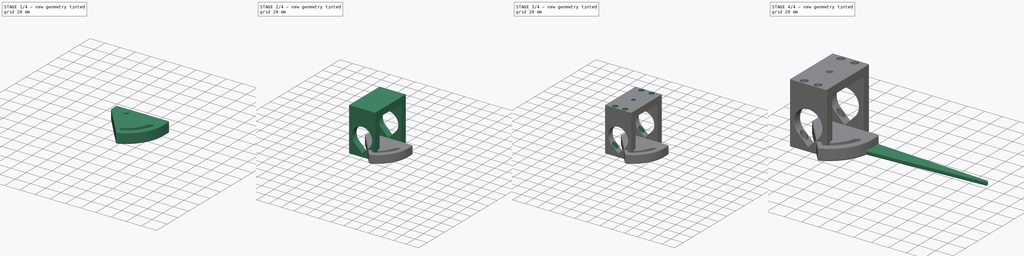
[diagram: build sequence overview — one tinted view per stage of 4, left to right]
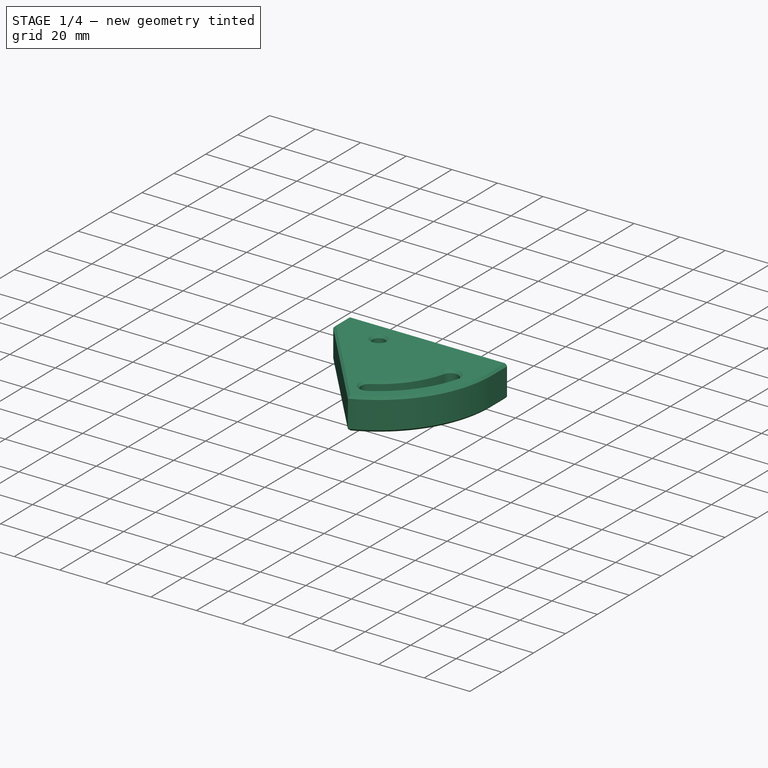
[diagram: stage 1 of 4 — iso view after this stage's code; geometry added in this stage tinted green]
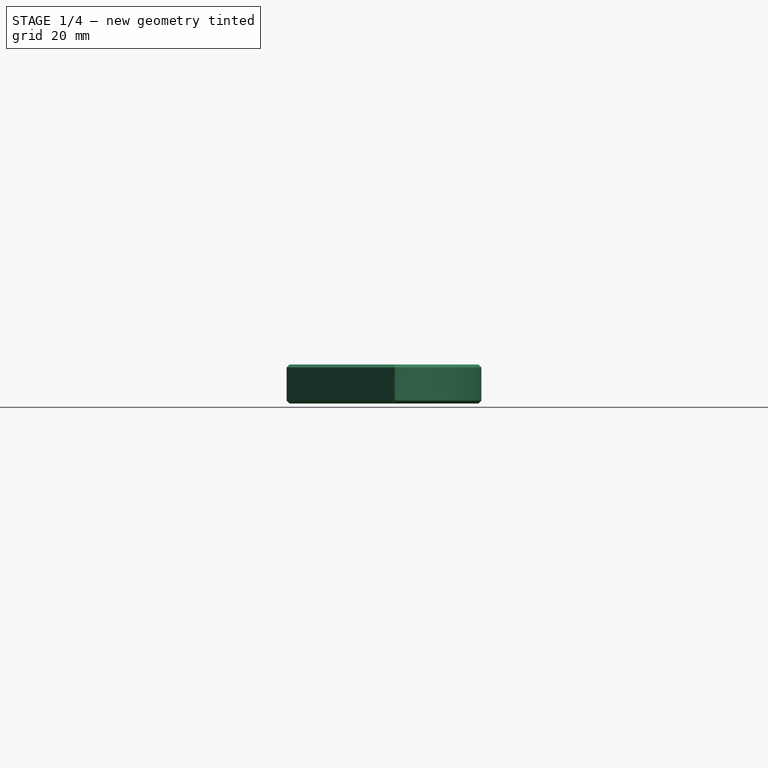
[diagram: stage 1 of 4 — front view after this stage's code; geometry added in this stage tinted green]
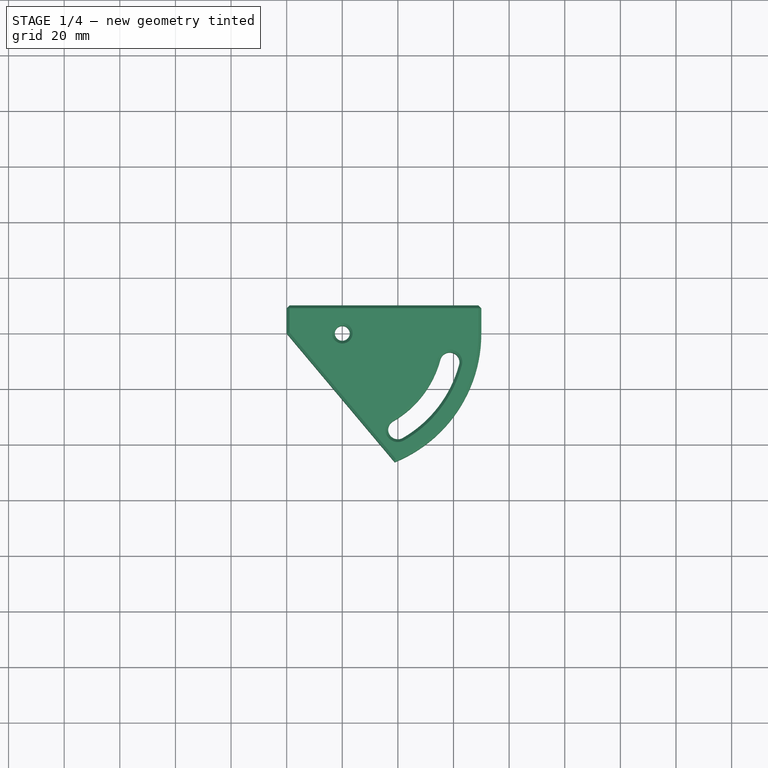
[diagram: stage 1 of 4 — top view after this stage's code; geometry added in this stage tinted green]
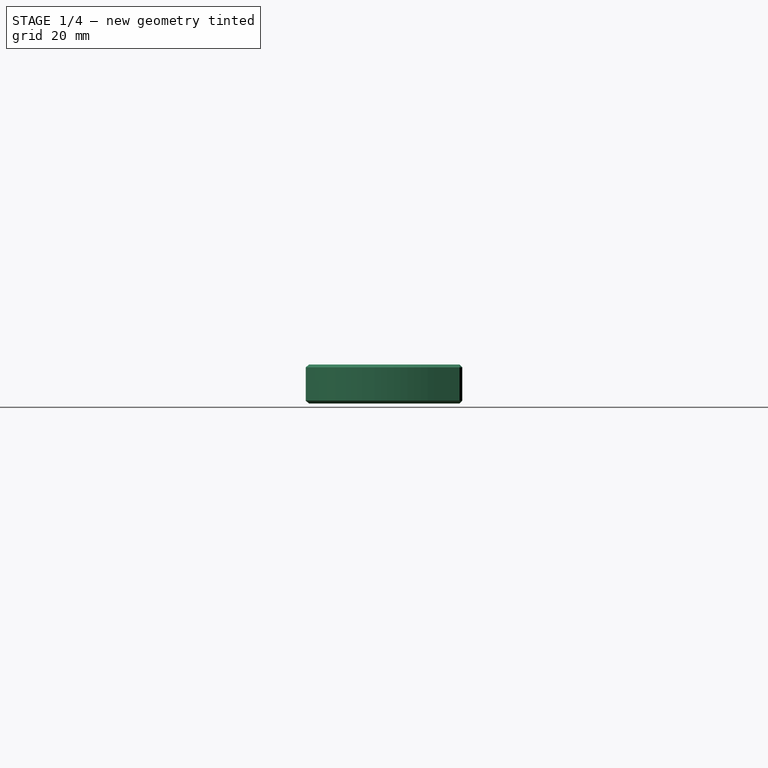
[diagram: stage 1 of 4 — right view after this stage's code; geometry added in this stage tinted green]
FCSTD DOCUMENT  (FreeCAD 0.20R29410 (Git))
Label: second way jig
License: All rights reserved
LicenseURL: http://en.wikipedia.org/wiki/All_rights_reserved
objects: Sketcher::SketchObject×9, PartDesign::Pocket×6, PartDesign::Pad×3, PartDesign::Chamfer×3, PartDesign::Body×3, Spreadsheet::Sheet×1, App::Part×1
note: 36 computed .brp shape members not serialized (recipe doc carries the construction recipe); baked Part::Feature solids carry a one-line shape summary decoded from their .brp

FEATURE [PartDesign::Body] Body001  label="body"
  Group = -> [Sketch001,Pad001,Sketch002,Pocket,Sketch003,Pocket001,Sketch004,Sketch005,Pocket002,Pocket003,Sketch007,Pocket004,Chamfer001]
  Origin = -> Origin002
  Tip = -> Chamfer001
FEATURE [PartDesign::Pad] Pad002
  Direction = (0,0,1)
  Length = 10
  Length2 = 10
  Profile = -> Sketch006
  ReferenceAxis = -> Sketch006 [N_Axis]
  Type = 0
  expr: Length = <<q>>.body_wall
FEATURE [Sketcher::SketchObject] Sketch008
  ExternalGeometry = -> [Pad002]
  FullyConstrained = true
  MapMode = 5
  Placement = pos=(0,10,0) rot=(0,0.707107,0.707107;3.14159rad)
  Support = -> [Pad002]
  expr: Constraints[1] = <<q>>.m5_insert_diameter
  expr: Constraints[3] = <<q>>.body_wall / 2
  expr: Constraints[4] = <<q>>.body_wall / 2
  sketch-geometry (3):
    g0: Circle CenterX=-45 CenterY=5 CenterZ=0 NormalX=0 NormalY=0 NormalZ=1 AngleXU=0 Radius=3.1
    g1: Circle CenterX=15 CenterY=5 CenterZ=0 NormalX=0 NormalY=0 NormalZ=1 AngleXU=0 Radius=3.1
    g2: GeomPoint X=-50 Y=5 Z=0
  constraints (7):
    c: Equal(g1,g0)
    c: Diameter(g1) = 6.2
    c: Horizontal(g0,g1)
    c: DistanceX(g-3,g0) = 5
    c: DistanceX(g1,g-4) = 5
    c: Symmetric(g-3,g-3,g2)
    c: Horizontal(g2,g0)
FEATURE [PartDesign::Pocket] Pocket005
  BaseFeature = -> Pad002
  Direction = (0,-1,2e-16)
  Length = 8
  Length2 = 5
  Profile = -> Sketch008
  ReferenceAxis = -> Sketch008 [N_Axis]
  Type = 0
  expr: Length = <<q>>.m5_insert_depth
FEATURE [PartDesign::Chamfer] Chamfer002
  Angle = 45
  Base = -> Pocket005 [Face3,Face4,Face1]
  BaseFeature = -> Pocket005
  ChamferType = 0
  FlipDirection = false
  Size = 1
  Size2 = 1
  SupportTransform = false
  UseAllEdges = false
FEATURE [PartDesign::Body] Body002  label="pivot"
  Group = -> [Sketch006,Pad002,Sketch008,Pocket005,Chamfer002]
  Origin = -> Origin003
  Tip = -> Chamfer002
FEATURE [App::Part] Part
  Group = -> [Body,Body001,Body002]
  Origin = -> Origin001
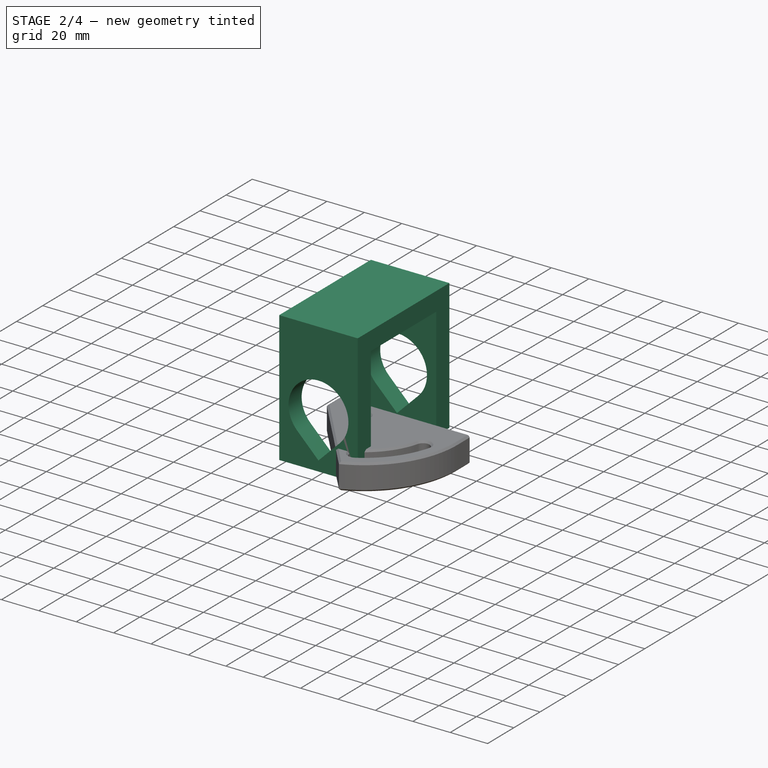
[diagram: stage 2 of 4 — iso view after this stage's code; geometry added in this stage tinted green]
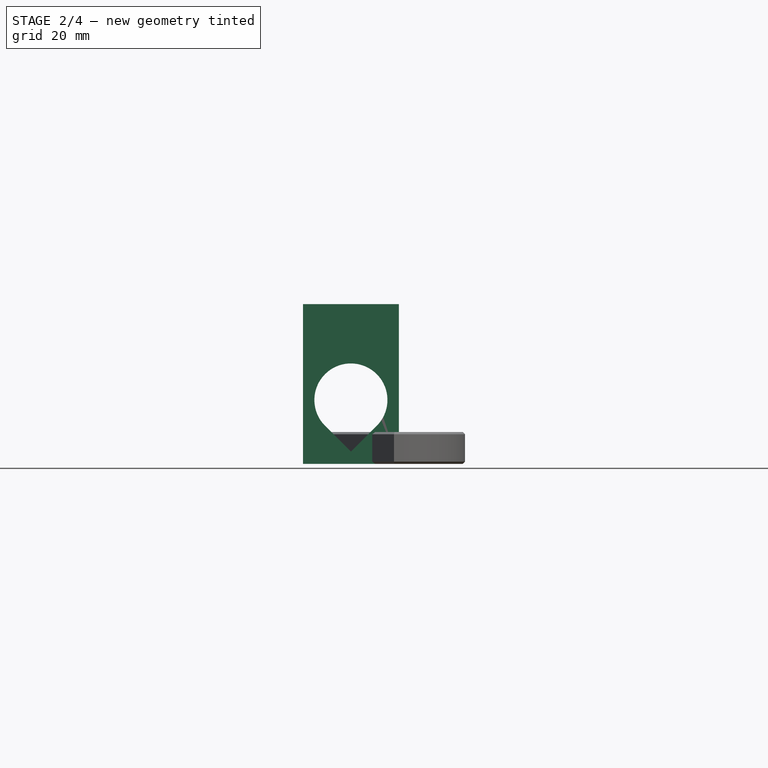
[diagram: stage 2 of 4 — front view after this stage's code; geometry added in this stage tinted green]
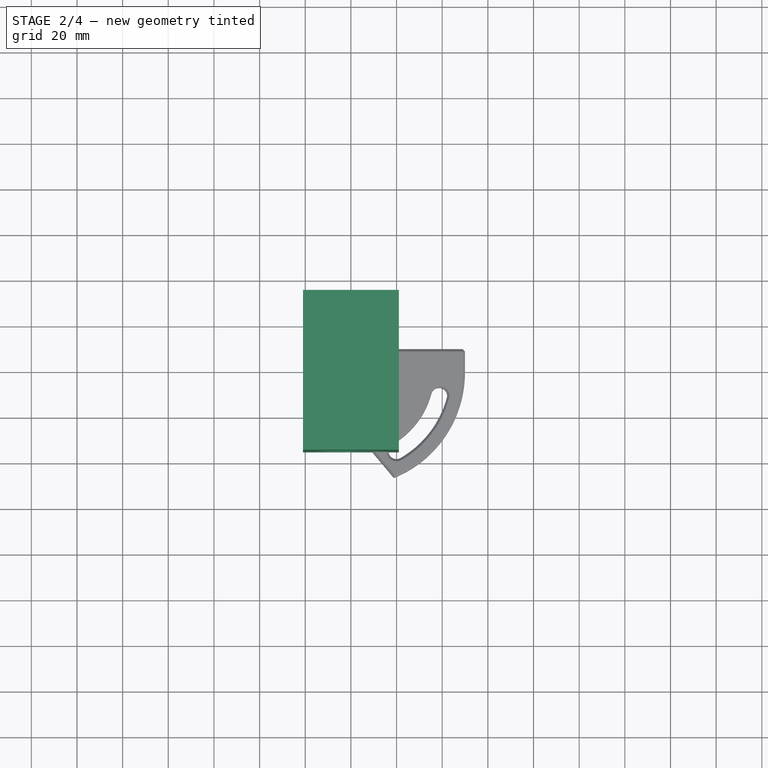
[diagram: stage 2 of 4 — top view after this stage's code; geometry added in this stage tinted green]
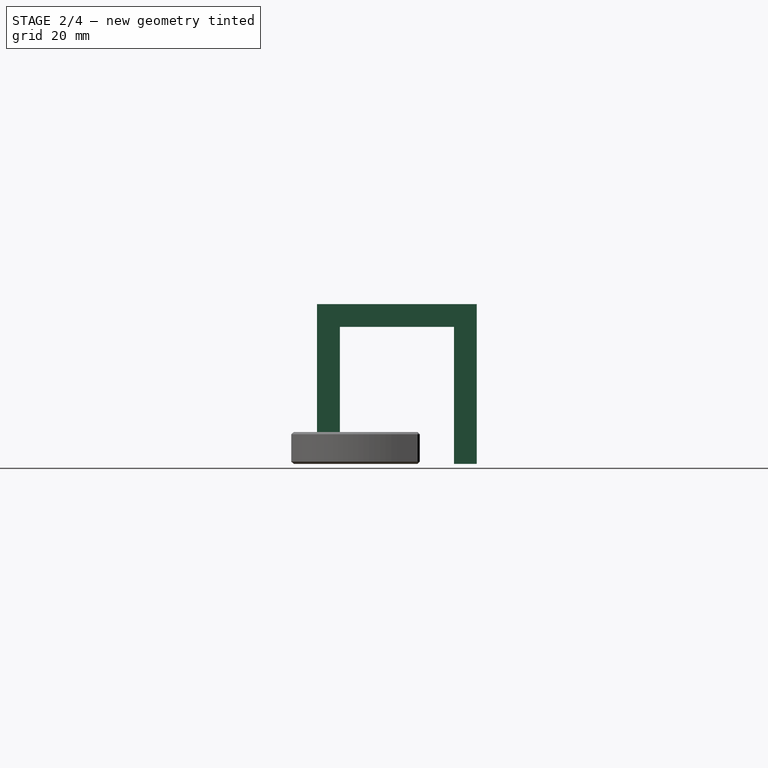
[diagram: stage 2 of 4 — right view after this stage's code; geometry added in this stage tinted green]
FEATURE [PartDesign::Body] Body  label="leg"
  Group = -> [Sketch,Pad,Chamfer]
  Origin = -> Origin
  Tip = -> Chamfer
FEATURE [Sketcher::SketchObject] Sketch001
  FullyConstrained = true
  MapMode = 5
  Support = -> [XY_Plane002]
  expr: Constraints[8] = <<q>>.body_width
  expr: Constraints[9] = <<q>>.body_height
  sketch-geometry (4):
    g0: LineSegment StartX=-21 StartY=35 StartZ=0 EndX=21 EndY=35 EndZ=0
    g1: LineSegment StartX=21 StartY=35 StartZ=0 EndX=21 EndY=-35 EndZ=0
    g2: LineSegment StartX=21 StartY=-35 StartZ=0 EndX=-21 EndY=-35 EndZ=0
    g3: LineSegment StartX=-21 StartY=-35 StartZ=0 EndX=-21 EndY=35 EndZ=0
  constraints (11):
    c: Coincident(g0,g1)
    c: Coincident(g1,g2)
    c: Coincident(g2,g3)
    c: Coincident(g3,g0)
    c: Horizontal(g0)
    c: Horizontal(g2)
    c: Vertical(g1)
    c: Vertical(g3)
    c: DistanceX(g0,g0) = 42
    c: DistanceY(g1,g1) = 70
    c: Symmetric(g2,g0,g-1)
FEATURE [PartDesign::Pad] Pad001
  Direction = (0,0,1)
  Length = 70
  Length2 = 10
  Profile = -> Sketch001
  ReferenceAxis = -> Sketch001 [N_Axis]
  Type = 0
  expr: Length = <<q>>.body_length
FEATURE [Sketcher::SketchObject] Sketch002
  FullyConstrained = true
  MapMode = 5
  Placement = pos=(0,-35,0) rot=(1,0,0;1.5708rad)
  Support = -> [Pad001]
  expr: Constraints[1] = <<q>>.tool_hole_diameter / 2
  expr: Constraints[8] = <<q>>.tool_hole_vertical
  sketch-geometry (3):
    g0: ArcOfCircle CenterX=0 CenterY=28 CenterZ=0 NormalX=0 NormalY=0 NormalZ=1 AngleXU=0 Radius=16 StartAngle=5.49779 EndAngle=10.2102
    g1: LineSegment StartX=-11.3137 StartY=16.6863 StartZ=0 EndX=0 EndY=5.37258 EndZ=0
    g2: LineSegment StartX=0 StartY=5.37258 StartZ=0 EndX=11.3137 EndY=16.6863 EndZ=0
  constraints (9):
    c: PointOnObject(g0,g-2)
    c: Radius(g0) = 16
    c: Tangent(g0,g1) = -1.5708
    c: Coincident(g1,g2)
    c: Coincident(g2,g0)
    c: PointOnObject(g1,g-2)
    c: Angle(g2,g1) = 1.5708
    c: Horizontal(g0,g0)
    c: DistanceY(g-1,g0) = 28
FEATURE [PartDesign::Pocket] Pocket
  BaseFeature = -> Pad001
  Direction = (0,1,-2e-16)
  Length = 0
  Length2 = 5
  Profile = -> Sketch002
  ReferenceAxis = -> Sketch002 [N_Axis]
  Type = 3
  UpToFace = -> Pad001 [Face1]
FEATURE [Sketcher::SketchObject] Sketch003
  ExternalGeometry = -> [Pocket]
  FullyConstrained = true
  MapMode = 5
  Placement = pos=(0,0,0) rot=(1,0,0;3.14159rad)
  Support = -> [Pocket]
  expr: Constraints[9] = <<q>>.body_wall
  sketch-geometry (4):
    g0: LineSegment StartX=-21 StartY=25 StartZ=0 EndX=21 EndY=25 EndZ=0
    g1: LineSegment StartX=21 StartY=25 StartZ=0 EndX=21 EndY=-25 EndZ=0
    g2: LineSegment StartX=21 StartY=-25 StartZ=0 EndX=-21 EndY=-25 EndZ=0
    g3: LineSegment StartX=-21 StartY=-25 StartZ=0 EndX=-21 EndY=25 EndZ=0
  constraints (11):
    c: Coincident(g0,g1)
    c: Coincident(g1,g2)
    c: Coincident(g2,g3)
    c: Coincident(g3,g0)
    c: Horizontal(g0)
    c: Horizontal(g2)
    c: Vertical(g1)
    c: Vertical(g3)
    c: Symmetric(g1,g0,g-1)
    c: DistanceY(g0,g-3) = 10
    c: Vertical(g-3,g0)
FEATURE [PartDesign::Pocket] Pocket001
  BaseFeature = -> Pocket
  Direction = (0,0,1)
  Length = 60
  Length2 = 5
  Profile = -> Sketch003
  ReferenceAxis = -> Sketch003 [N_Axis]
  Type = 0
  expr: Length = <<q>>.body_height - <<q>>.body_wall
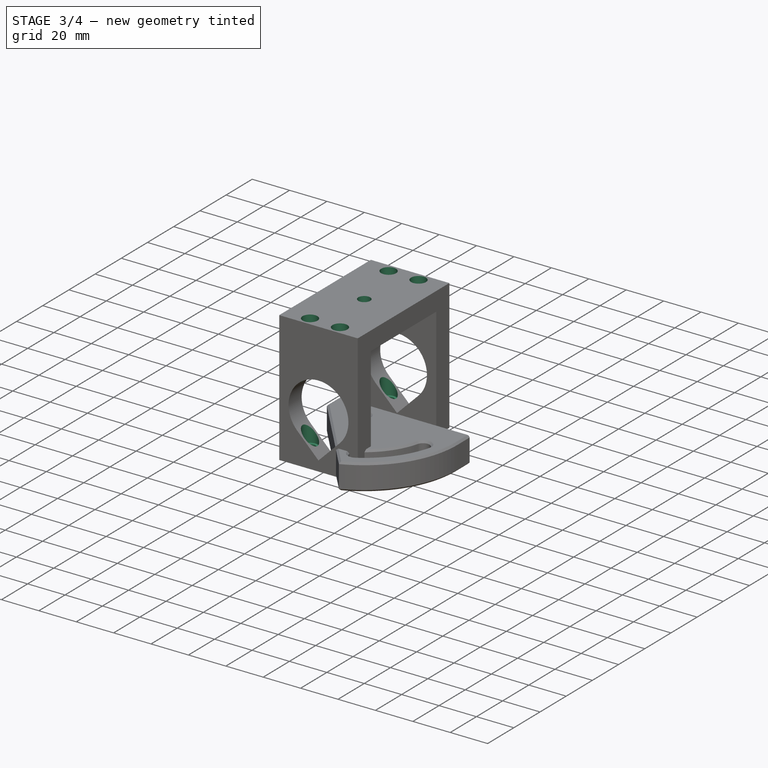
[diagram: stage 3 of 4 — iso view after this stage's code; geometry added in this stage tinted green]
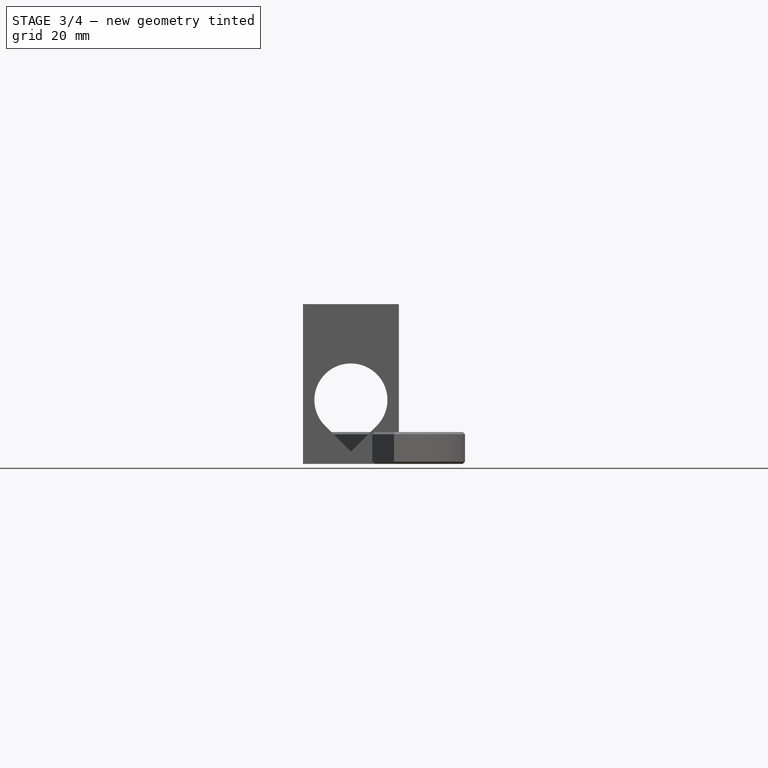
[diagram: stage 3 of 4 — front view after this stage's code; geometry added in this stage tinted green]
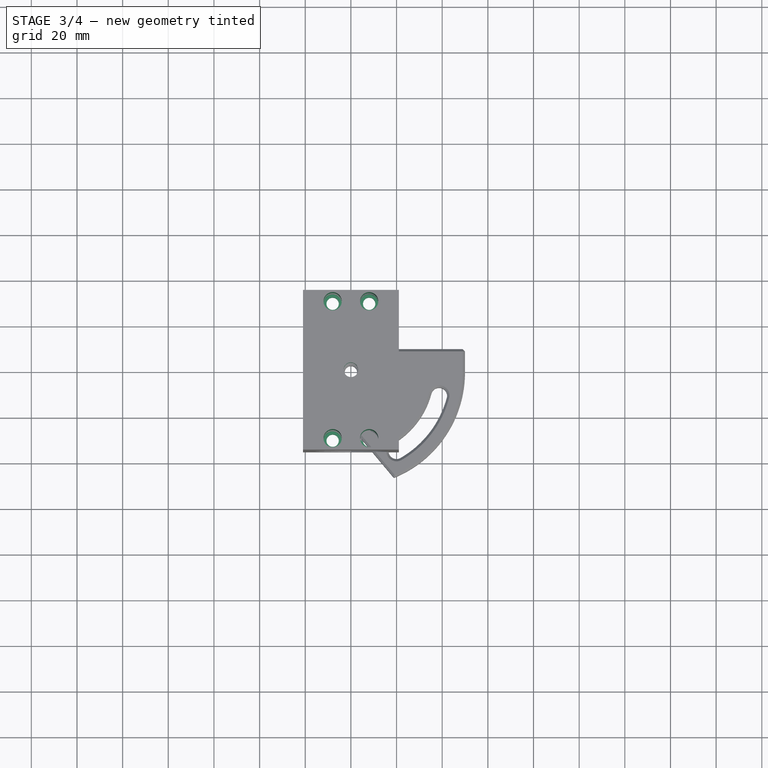
[diagram: stage 3 of 4 — top view after this stage's code; geometry added in this stage tinted green]
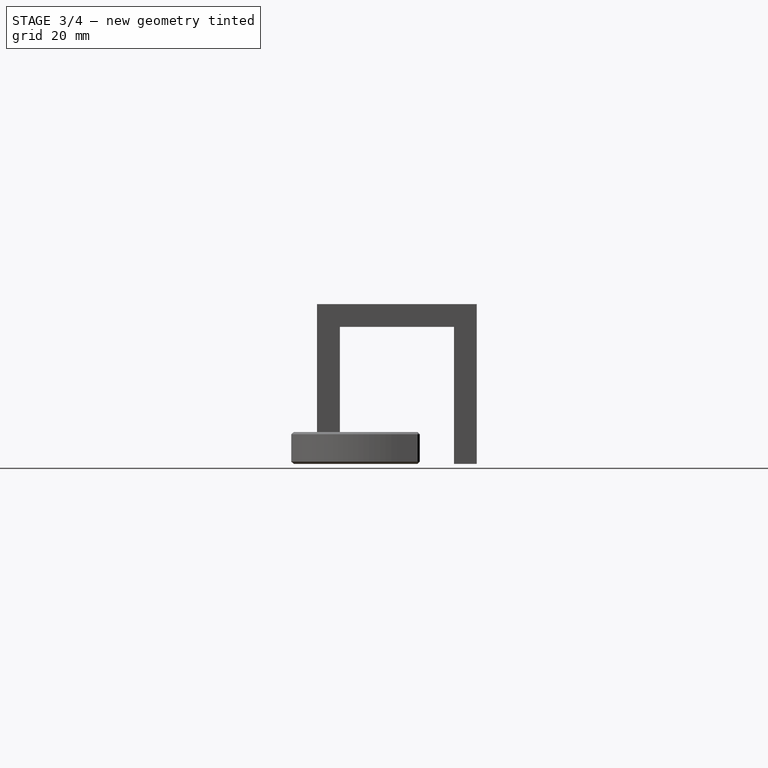
[diagram: stage 3 of 4 — right view after this stage's code; geometry added in this stage tinted green]
FEATURE [Sketcher::SketchObject] Sketch004
  ExternalGeometry = -> [Pocket001]
  FullyConstrained = true
  MapMode = 5
  Placement = pos=(0,0,70) rot=(0,0,1;0rad)
  Support = -> [Pocket001]
  expr: Constraints[0] = <<q>>.m5_screw + 1mm
  sketch-geometry (1):
    g0: Circle CenterX=0 CenterY=0 CenterZ=0 NormalX=0 NormalY=0 NormalZ=1 AngleXU=0 Radius=3.2
  constraints (2):
    c: Diameter(g0) = 6.4
    c: Coincident(g0,g-1)
FEATURE [Sketcher::SketchObject] Sketch005
  ExternalGeometry = -> [Pocket001]
  FullyConstrained = true
  MapMode = 5
  Placement = pos=(0,0,0) rot=(1,0,0;3.14159rad)
  Support = -> [Pocket001]
  expr: Constraints[11] = <<q>>.m5_screw
  expr: Constraints[14] = <<q>>.body_wall / 2
  expr: Constraints[8] = <<q>>.leg_thickness + <<q>>.fudge
  sketch-geometry (9):
    g0: LineSegment StartX=-3 StartY=35 StartZ=0 EndX=3 EndY=35 EndZ=0
    g1: LineSegment StartX=3 StartY=35 StartZ=0 EndX=3 EndY=-35 EndZ=0
    g2: LineSegment StartX=3 StartY=-35 StartZ=0 EndX=-3 EndY=-35 EndZ=0
    g3: LineSegment StartX=-3 StartY=-35 StartZ=0 EndX=-3 EndY=35 EndZ=0
    g4: Circle CenterX=-8 CenterY=30 CenterZ=0 NormalX=0 NormalY=0 NormalZ=1 AngleXU=0 Radius=2.7
    g5: GeomPoint X=-21 Y=30 Z=0
    g6: Circle CenterX=8 CenterY=30 CenterZ=0 NormalX=0 NormalY=0 NormalZ=1 AngleXU=0 Radius=2.7
    g7: Circle CenterX=-8 CenterY=-30 CenterZ=0 NormalX=0 NormalY=0 NormalZ=1 AngleXU=0 Radius=2.7
    g8: Circle CenterX=8 CenterY=-30 CenterZ=0 NormalX=0 NormalY=0 NormalZ=1 AngleXU=0 Radius=2.7
  constraints (21):
    c: Coincident(g0,g1)
    c: Coincident(g1,g2)
    c: Coincident(g2,g3)
    c: Coincident(g3,g0)
    c: Horizontal(g0)
    c: Horizontal(g2)
    c: Vertical(g1)
    c: Vertical(g3)
    c: DistanceX(g0,g0) = 6
    c: Symmetric(g0,g2,g-1)
    c: PointOnObject(g0,g-3)
    c: Diameter(g4) = 5.4
    c: Symmetric(g-3,g-5,g5)
    c: Horizontal(g5,g4)
    c: DistanceX(g4,g0) = 5
    c: Equal(g8,g7)
    c: Equal(g7,g6)
    c: Equal(g6,g4)
    c: Symmetric(g4,g8,g-1)
    c: Symmetric(g7,g6,g-1)
    c: Symmetric(g7,g8,g-2)
FEATURE [PartDesign::Pocket] Pocket002
  BaseFeature = -> Pocket001
  Direction = (0,0,-1)
  Length = 0
  Length2 = 5
  Profile = -> Sketch004
  ReferenceAxis = -> Sketch004 [N_Axis]
  Type = 3
  UpToFace = -> Pocket001 [Face11]
FEATURE [PartDesign::Pocket] Pocket003
  BaseFeature = -> Pocket002
  Direction = (0,0,1)
  Length = 70
  Length2 = 5
  Profile = -> Sketch005
  ReferenceAxis = -> Sketch005 [N_Axis]
  Type = 0
  expr: Length = <<q>>.body_height
FEATURE [Sketcher::SketchObject] Sketch006
  FullyConstrained = true
  MapMode = 5
  Support = -> [XY_Plane003]
  expr: Constraints[10] = <<q>>.pivot_hole_offset_x
  expr: Constraints[13] = <<q>>.leg_lock_hole_offset - <<q>>.pivot_slot_width / 2
  expr: Constraints[15] = <<q>>.leg_lock_hole_offset + <<q>>.pivot_slot_width / 2
  expr: Constraints[5] = <<q>>.body_length
  expr: Constraints[7] = <<q>>.pivot_hole_offset_y
  expr: Constraints[9] = <<q>>.m5_screw
  sketch-geometry (13):
    g0: LineSegment StartX=-20 StartY=10 StartZ=0 EndX=50 EndY=10 EndZ=0
    g1: LineSegment StartX=50 StartY=10 StartZ=0 EndX=50 EndY=-1.24e-14 EndZ=0
    g2: LineSegment StartX=-20 StartY=10 StartZ=0 EndX=-20 EndY=0 EndZ=0
    g3: LineSegment StartX=-20 StartY=0 StartZ=0 EndX=18.8569 EndY=-46.3079 EndZ=0
    g4: Circle CenterX=0 CenterY=0 CenterZ=0 NormalX=0 NormalY=0 NormalZ=1 AngleXU=0 Radius=2.7
    g5: ArcOfCircle CenterX=0 CenterY=0 CenterZ=0 NormalX=0 NormalY=0 NormalZ=1 AngleXU=0 Radius=36.5 StartAngle=5.23599 EndAngle=6.02139
    g6: ArcOfCircle CenterX=0 CenterY=0 CenterZ=0 NormalX=0 NormalY=0 NormalZ=1 AngleXU=0 Radius=43.5 StartAngle=5.23599 EndAngle=6.02139
    g7: ArcOfCircle CenterX=38.637 CenterY=-10.3528 CenterZ=0 NormalX=0 NormalY=0 NormalZ=1 AngleXU=0 Radius=3.5 StartAngle=6.02139 EndAngle=9.16298
    g8: ArcOfCircle CenterX=20 CenterY=-34.641 CenterZ=0 NormalX=0 NormalY=0 NormalZ=1 AngleXU=0 Radius=3.5 StartAngle=2.0944 EndAngle=5.23599
    g9: LineSegment StartX=0 StartY=0 StartZ=0 EndX=38.637 EndY=-10.3528 EndZ=0
    g10: LineSegment StartX=0 StartY=0 StartZ=0 EndX=20 EndY=-34.641 EndZ=0
    g11: ArcOfCircle CenterX=0 CenterY=0 CenterZ=0 NormalX=0 NormalY=0 NormalZ=1 AngleXU=0 Radius=50 StartAngle=5.09909 EndAngle=6.28319
    g12: LineSegment StartX=0 StartY=0 StartZ=0 EndX=-20 EndY=0 EndZ=0
  constraints (33):
    c: Horizontal(g0)
    c: Coincident(g0,g1)
    c: Vertical(g1)
    c: Vertical(g2)
    c: Coincident(g2,g3)
    c: DistanceX(g0,g0) = 70
    c: Coincident(g2,g0)
    c: DistanceY(g2,g2) = 10
    c: Equal(g2,g1)
    c: Diameter(g4) = 5.4
    c: DistanceX(g2,g4) = 20
    c: Horizontal(g2,g4)
    c: Coincident(g5,g4)
    c: Radius(g5) = 36.5
    c: Coincident(g6,g4)
    c: Radius(g6) = 43.5
    c: Tangent(g7,g5) = 1.5708
    c: Tangent(g7,g6) = -1.5708
    c: Tangent(g8,g5) = 1.5708
    c: Tangent(g8,g6) = -1.5708
    c: Coincident(g9,g4)
    c: Coincident(g9,g7)
    c: Coincident(g10,g4)
    c: Coincident(g10,g8)
    c: Angle(g10,g9) = 0.785398
    c: Coincident(g11,g4)
    c: Coincident(g11,g1)
    c: Coincident(g12,g4)
    c: Coincident(g12,g2)
    c: Coincident(g11,g3)
    c: Angle(g3,g12) = 0.872665
    c: Angle(g12,g10) = 2.0944
    c: Coincident(g4,g-1)
FEATURE [Sketcher::SketchObject] Sketch007
  ExternalGeometry = -> [Pocket003]
  FullyConstrained = true
  MapMode = 5
  Placement = pos=(0,0,70) rot=(0,0,1;0rad)
  Support = -> [Pocket003]
  expr: Constraints[3] = <<q>>.m5_cap
  sketch-geometry (4):
    g0: Circle CenterX=-8 CenterY=30 CenterZ=0 NormalX=0 NormalY=0 NormalZ=1 AngleXU=0 Radius=4
    g1: Circle CenterX=8 CenterY=30 CenterZ=0 NormalX=0 NormalY=0 NormalZ=1 AngleXU=0 Radius=4
    g2: Circle CenterX=8 CenterY=-30 CenterZ=0 NormalX=0 NormalY=0 NormalZ=1 AngleXU=0 Radius=4
    g3: Circle CenterX=-8 CenterY=-30 CenterZ=0 NormalX=0 NormalY=0 NormalZ=1 AngleXU=0 Radius=4
  constraints (8):
    c: Equal(g0,g1)
    c: Equal(g1,g2)
    c: Equal(g2,g3)
    c: Diameter(g1) = 8
    c: Coincident(g0,g-3)
    c: Coincident(g3,g-6)
    c: Coincident(g2,g-5)
    c: Coincident(g1,g-4)
FEATURE [PartDesign::Pocket] Pocket004
  BaseFeature = -> Pocket003
  Direction = (0,0,-1)
  Length = 62
  Length2 = 5
  Profile = -> Sketch007
  ReferenceAxis = -> Sketch007 [N_Axis]
  Type = 0
  expr: Length = <<q>>.body_height - 8mm
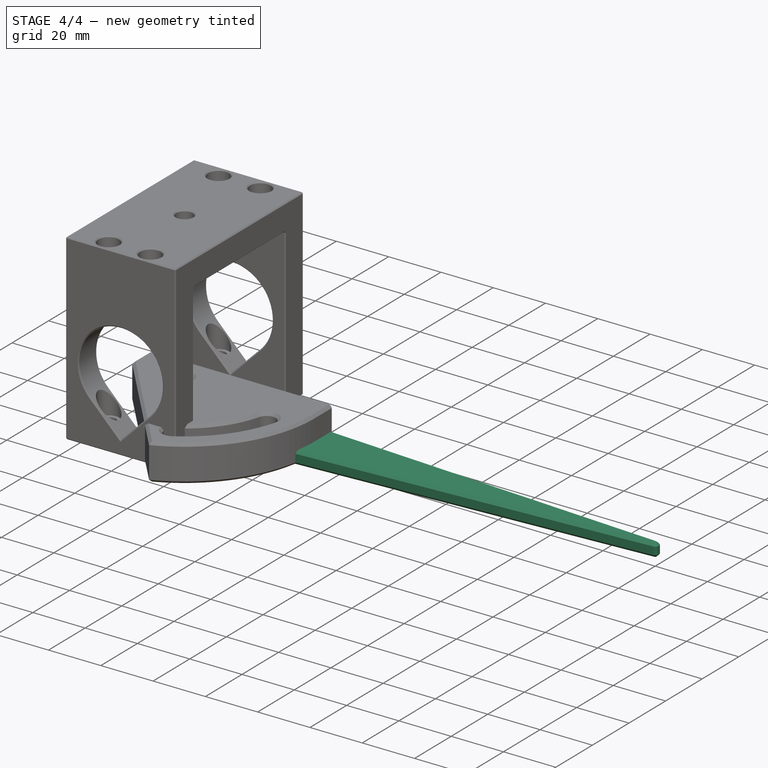
[diagram: stage 4 of 4 — iso view after this stage's code; geometry added in this stage tinted green]
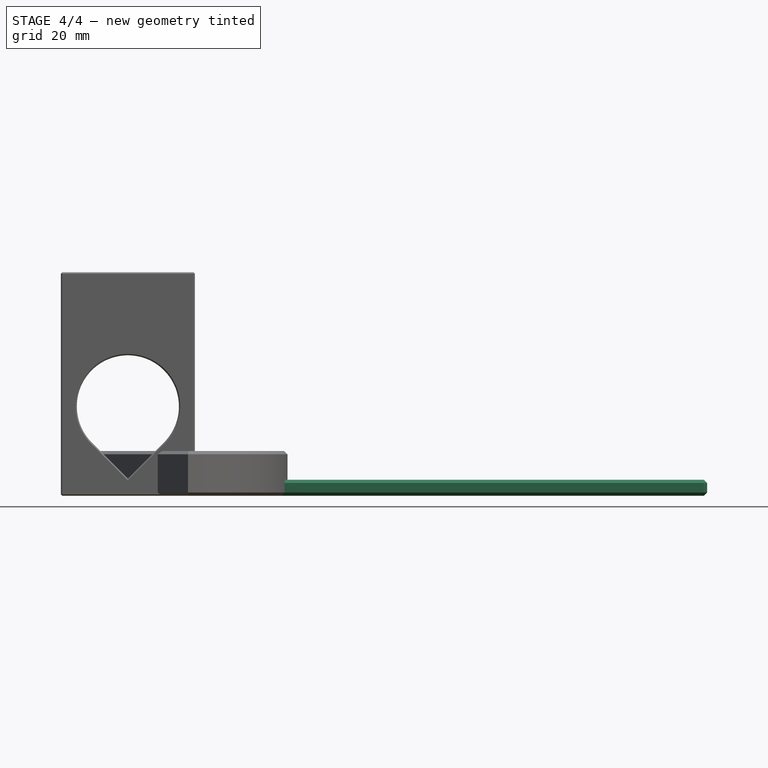
[diagram: stage 4 of 4 — front view after this stage's code; geometry added in this stage tinted green]
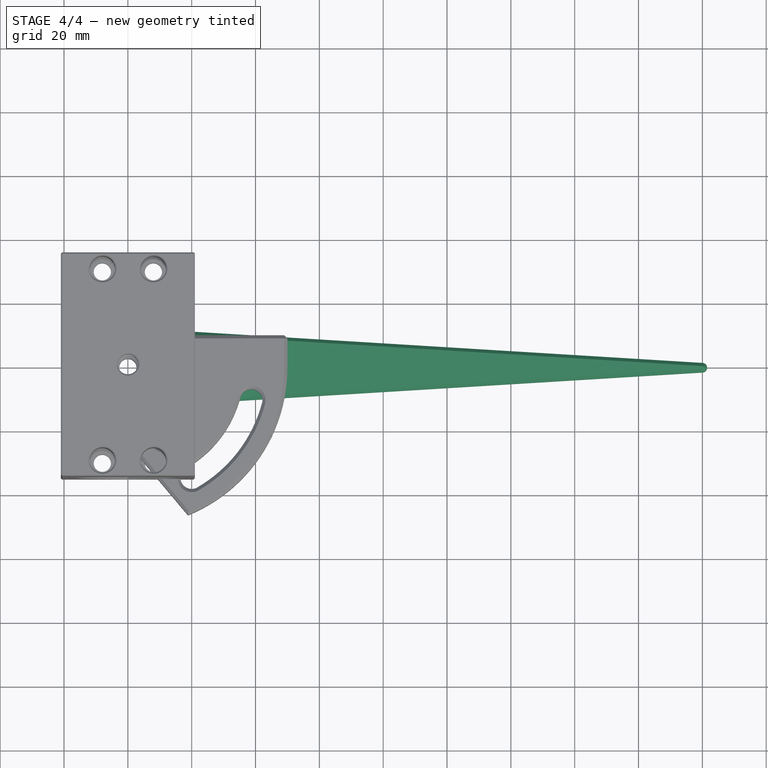
[diagram: stage 4 of 4 — top view after this stage's code; geometry added in this stage tinted green]
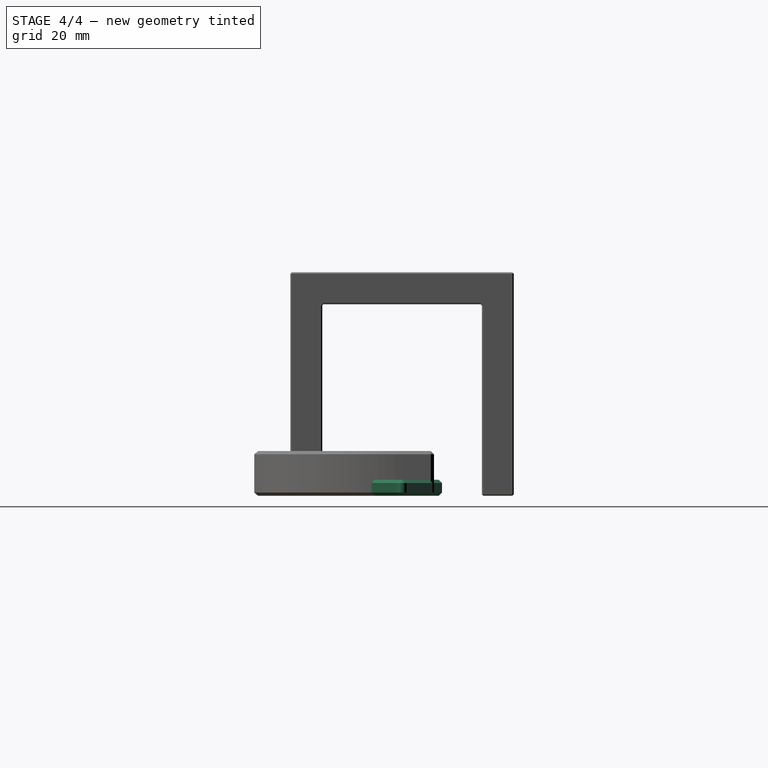
[diagram: stage 4 of 4 — right view after this stage's code; geometry added in this stage tinted green]
FEATURE [Sketcher::SketchObject] Sketch
  FullyConstrained = true
  MapMode = 5
  Support = -> [XY_Plane]
  expr: Constraints[11] = <<q>>.leg_lock_hole_offset
  expr: Constraints[13] = <<q>>.leg_hole_diameter
  expr: Constraints[1] = <<q>>.leg_length
  expr: Constraints[6] = <<q>>.leg_wide / 2
  expr: Constraints[7] = <<q>>.leg_narrow / 2
  expr: Constraints[9] = <<q>>.m5_screw
  sketch-geometry (6):
    g0: ArcOfCircle CenterX=0 CenterY=0 CenterZ=0 NormalX=0 NormalY=0 NormalZ=1 AngleXU=0 Radius=12.5 StartAngle=1.50965 EndAngle=4.77354
    g1: ArcOfCircle CenterX=180 CenterY=0 CenterZ=0 NormalX=0 NormalY=0 NormalZ=1 AngleXU=0 Radius=1.5 StartAngle=4.77354 EndAngle=7.79283
    g2: LineSegment StartX=0.763889 StartY=12.4766 StartZ=0 EndX=180.092 EndY=1.4972 EndZ=0
    g3: LineSegment StartX=0.763889 StartY=-12.4766 StartZ=0 EndX=180.092 EndY=-1.4972 EndZ=0
    g4: Circle CenterX=0 CenterY=0 CenterZ=0 NormalX=0 NormalY=0 NormalZ=1 AngleXU=0 Radius=2.7
    g5: Circle CenterX=40 CenterY=0 CenterZ=0 NormalX=0 NormalY=0 NormalZ=1 AngleXU=0 Radius=3.5
  constraints (14):
    c: Horizontal(g0,g1)
    c: DistanceX(g0,g1) = 180
    c: Tangent(g2,g0) = 1.5708
    c: Tangent(g3,g0) = -1.5708
    c: Tangent(g3,g1) = -1.5708
    c: Tangent(g2,g1) = 1.5708
    c: Radius(g0) = 12.5
    c: Radius(g1) = 1.5
    c: Coincident(g4,g0)
    c: Diameter(g4) = 5.4
    c: Horizontal(g0,g5)
    c: DistanceX(g0,g5) = 40
    c: Coincident(g0,g-1)
    c: Diameter(g5) = 7
FEATURE [Spreadsheet::Sheet] Spreadsheet  label="q"
  cells = A1=fudge; B1(fudge)==1mm; A2=leg length; B2(leg_length)==180mm; A3=leg wide; B3(leg_wide)==25mm; A4=leg narrow; B4(leg_narrow)==3mm; A5=leg lock hole offset; B5(leg_lock_hole_offset)==40mm; A6=leg hole diameter; B6(leg_hole_diameter)==7mm; A7=leg thickness; B7(leg_thickness)==5mm; A9=body width; B9(body_width)==42mm; A10=body length; B10(body_length)==70mm; A11=body height; B11(body_height)==70mm; A12=body wall; B12(body_wall)==10mm; A13=tool hole diameter; B13(tool_hole_diameter)==32mm; A14=tool hole vertical; B14(tool_hole_vertical)==28mm; A15=body holding screw offset; B15(body_holding_screw_offset)==25mm; A16=m5 insert diameter; B16(m5_insert_diameter)==6.2mm; A17=m5 insert depth; B17(m5_insert_depth)==8mm; A18=m5 screw; B18(m5_screw)==5.4mm; A19=m5 cap; B19(m5_cap)==8mm; A21=pivot hole offset x; B21(pivot_hole_offset_x)==20mm; A22=pivot hole offset y; B22(pivot_hole_offset_y)==10mm; A23=pivot slot width; B23(pivot_slot_width)==7mm; A25=m5 head width; B25(m5_head_width)==8mm; A26=m5 head height; B26(m5_head_height)==3.8mm; A27=thumbscrew diameter; B27(thumbscrew_diameter)==thumbscrew_circumference / 3.1415; A28=thumbscrew height; B28(thumbscrew_height)==12mm; A29=thumbscrew circumference; B29(thumbscrew_circumference)==76mm; A30=knurl diagonal; B30(knurl_diagonal)==2mm; A31=knurls; B31(knurls)==thumbscrew_circumference / knurl_diagonal; A33=thumbwheel diameter; B33==body_width * 1.3
FEATURE [PartDesign::Pad] Pad
  Direction = (0,0,1)
  Length = 5
  Length2 = 10
  Profile = -> Sketch
  ReferenceAxis = -> Sketch [N_Axis]
  Type = 0
  expr: Length = <<q>>.leg_thickness
FEATURE [PartDesign::Chamfer] Chamfer
  Angle = 45
  Base = -> Pad [Face8,Face7]
  BaseFeature = -> Pad
  ChamferType = 0
  FlipDirection = false
  Size = 1
  Size2 = 1
  SupportTransform = false
  UseAllEdges = false
FEATURE [PartDesign::Chamfer] Chamfer001
  Angle = 45
  Base = -> Pocket004 [Face4,Face13,Face2,Face1,Face5,Face10,Face12,Face9,Face3]
  BaseFeature = -> Pocket004
  ChamferType = 0
  FlipDirection = false
  Size = 0.4
  Size2 = 1
  SupportTransform = false
  UseAllEdges = false
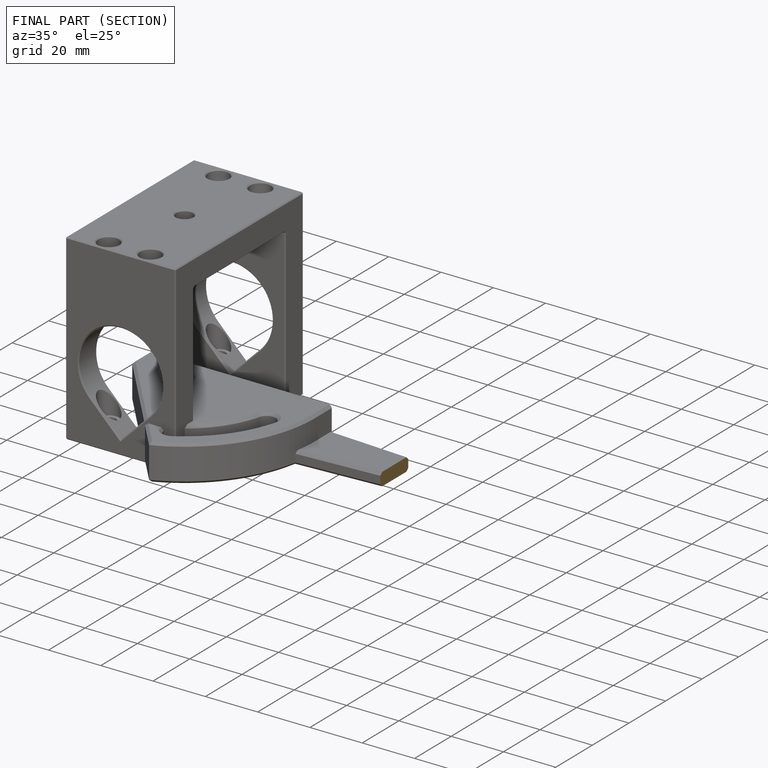
[diagram: finished part — half-section view (interior)]
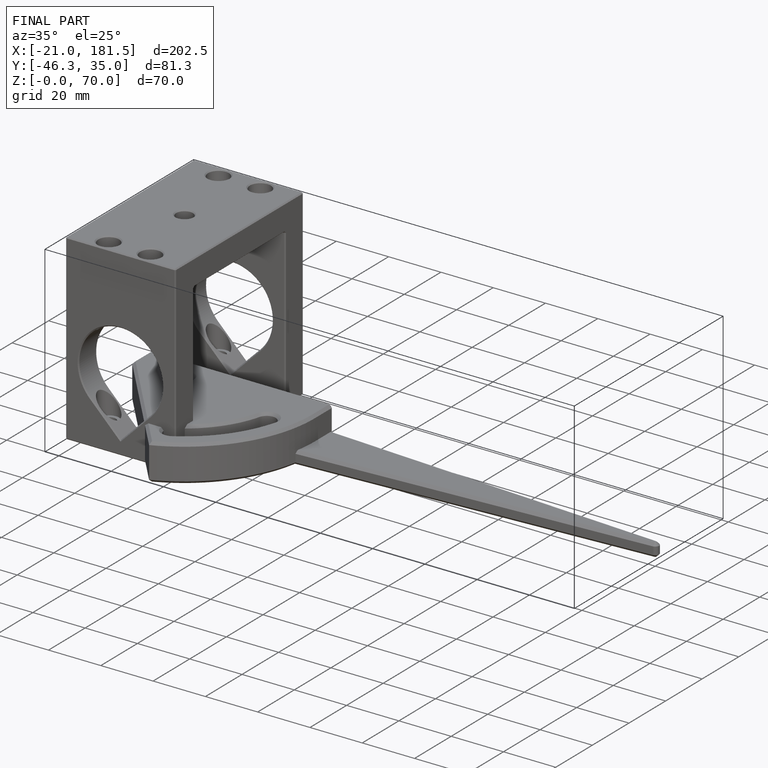
[diagram: finished part — iso view with bounding-box wireframe]
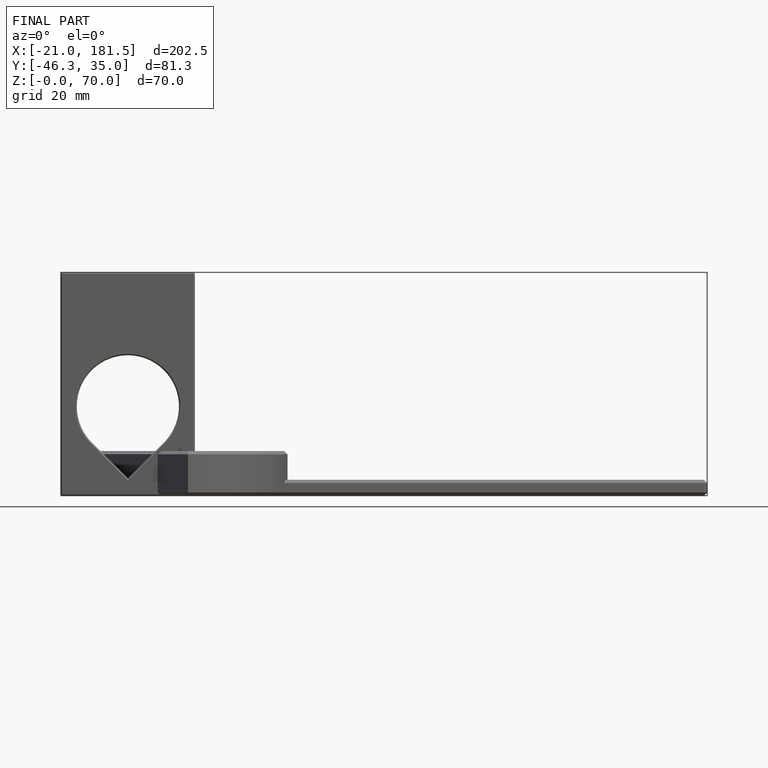
[diagram: finished part — front view with bounding-box wireframe]
